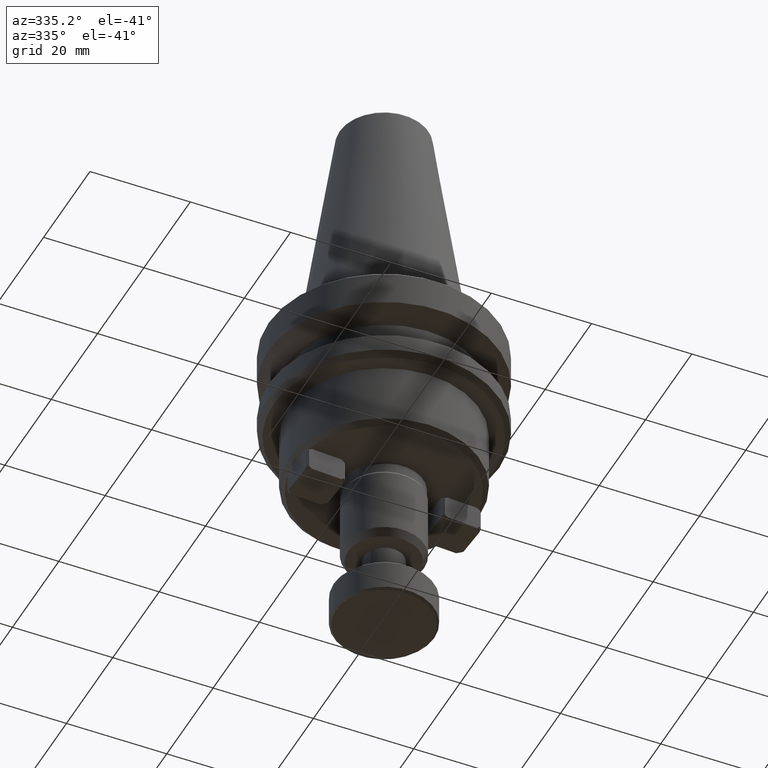
[diagram: clean part render]
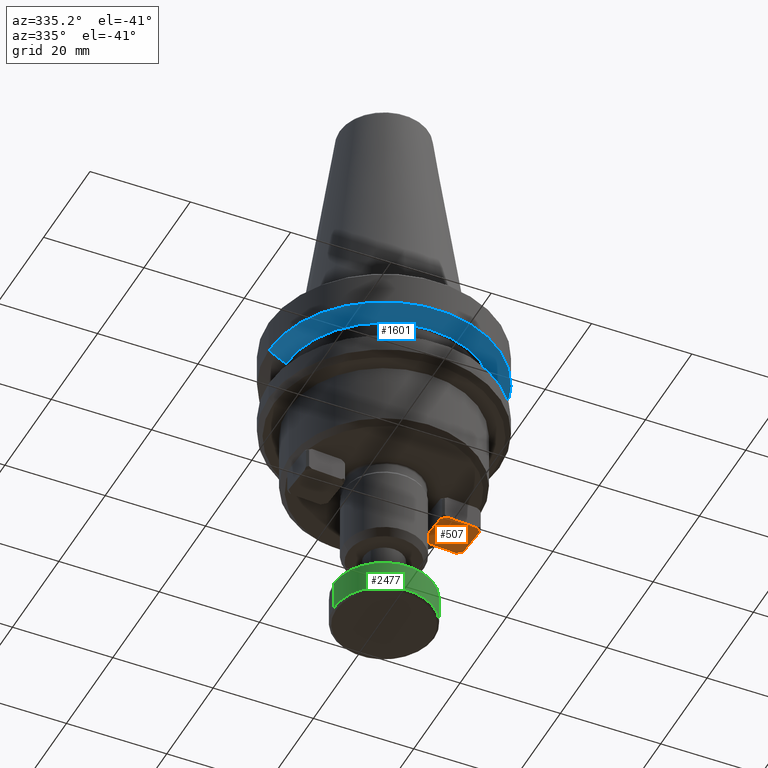
[diagram: same view with three faces highlighted in distinct colors, each labeled with its STEP entity id]
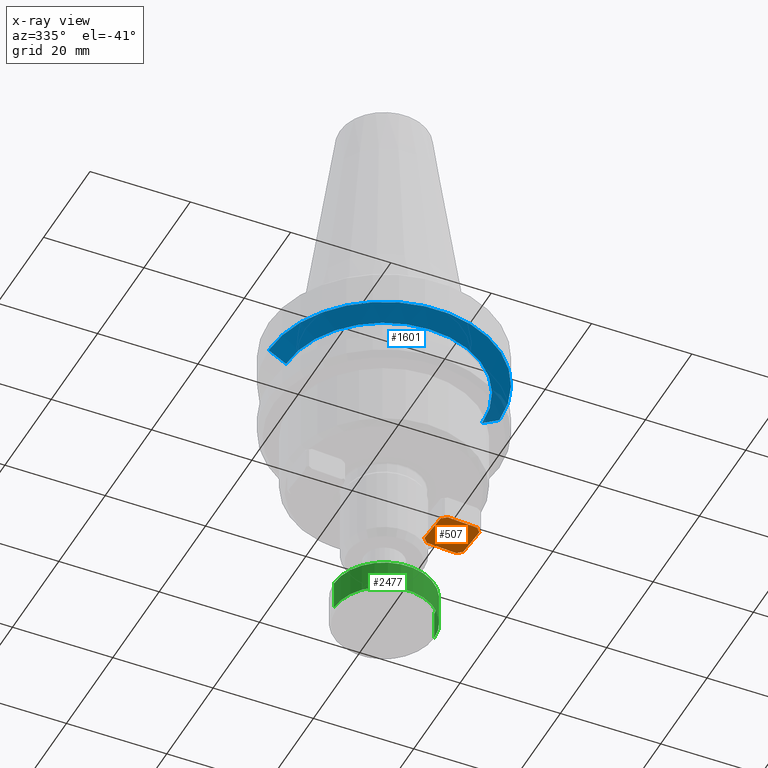
[diagram: x-ray of the same camera — body ghosted, the three highlighted faces saturated]
A machine part, auxiliary view with three faces highlighted in distinct colors.
The next image is the same camera in x-ray (body ghosted, the three faces saturated) — at least one of them is partly hidden behind the body in this view.
Their STEP definitions:

[orange] entity #507 — the highlighted planar face has unit normal (0, -0, -1).
#13 = CARTESIAN_POINT ( 'NONE',  ( 52.39083577158259400, 57.95562535712460300, 36.32808018129033200 ) ) ;
#171 = EDGE_CURVE ( 'NONE', #2365, #510, #3293, .T. ) ;
#334 = EDGE_CURVE ( 'NONE', #3268, #2072, #1444, .T. ) ;
#444 = DIRECTION ( 'NONE',  ( -0.6617231083353180000, -0.7497483096980246400, 0.0000000000000000000 ) ) ;
#478 = CARTESIAN_POINT ( 'NONE',  ( 59.84934925718415900, 51.37278860589403700, 36.32808018129033200 ) ) ;
#507 = ADVANCED_FACE ( 'NONE', ( #3252 ), #2300, .T. ) ;
#510 = VERTEX_POINT ( 'NONE', #3431 ) ;
#613 = DIRECTION ( 'NONE',  ( -0.7497483096980248600, 0.6617231083353176700, 0.0000000000000000000 ) ) ;
#663 = DIRECTION ( 'NONE',  ( 0.06224321679888165900, -0.9980610111423686700, -0.0000000000000000000 ) ) ;
#719 = CARTESIAN_POINT ( 'NONE',  ( 52.88878150597364700, 49.97113726798565400, 36.32808018129033200 ) ) ;
#771 = ORIENTED_EDGE ( 'NONE', *, *, #171, .F. ) ;
#780 = DIRECTION ( 'NONE',  ( -0.9980610111423686700, -0.06224321679888165900, 0.0000000000000000000 ) ) ;
#844 = DIRECTION ( 'NONE',  ( -0.7497483096980246400, 0.6617231083353180000, 2.540443715647714400E-015 ) ) ;
#868 = VERTEX_POINT ( 'NONE', #2280 ) ;
#883 = VECTOR ( 'NONE', #780, 1000.000000000000200 ) ;
#919 = VECTOR ( 'NONE', #2728, 1000.000000000000000 ) ;
#923 = LINE ( 'NONE', #719, #2175 ) ;
#924 = DIRECTION ( 'NONE',  ( 0.0000000000000000000, -0.0000000000000000000, -1.000000000000000000 ) ) ;
#1038 = CARTESIAN_POINT ( 'NONE',  ( 59.41151088999865900, 58.39346372431010200, 36.32808018129033200 ) ) ;
#1160 = ORIENTED_EDGE ( 'NONE', *, *, #3310, .T. ) ;
#1304 = CARTESIAN_POINT ( 'NONE',  ( 52.88878150597364700, 49.97113726798565400, 36.32808018129033200 ) ) ;
#1324 = CARTESIAN_POINT ( 'NONE',  ( 51.90007124853120500, 50.31025430523705200, 36.32808018129033200 ) ) ;
#1331 = EDGE_CURVE ( 'NONE', #1624, #868, #3393, .T. ) ;
#1335 = EDGE_CURVE ( 'NONE', #3205, #510, #1338, .T. ) ;
#1338 = LINE ( 'NONE', #2318, #2595 ) ;
#1349 = DIRECTION ( 'NONE',  ( 0.06224321679888166600, -0.9980610111423687800, 0.0000000000000000000 ) ) ;
#1444 = LINE ( 'NONE', #1324, #2709 ) ;
#1467 = CARTESIAN_POINT ( 'NONE',  ( 59.88455933767016100, 50.80820003962810500, 36.32808018129033200 ) ) ;
#1495 = CARTESIAN_POINT ( 'NONE',  ( 59.84934925718415900, 51.37278860589403700, 36.32808018129033200 ) ) ;
#1544 = ORIENTED_EDGE ( 'NONE', *, *, #1335, .T. ) ;
#1574 = CARTESIAN_POINT ( 'NONE',  ( 51.48713016806526400, 56.93170501919616600, 36.32808018129033200 ) ) ;
#1624 = VERTEX_POINT ( 'NONE', #1495 ) ;
#1696 = EDGE_LOOP ( 'NONE', ( #1544, #771, #2616, #2068, #2963, #3379, #3326, #1160 ) ) ;
#1924 = CARTESIAN_POINT ( 'NONE',  ( 51.86486116811549600, 50.87484287144094700, 36.32808018129033200 ) ) ;
#1946 = VECTOR ( 'NONE', #444, 1000.000000000000000 ) ;
#2034 = VECTOR ( 'NONE', #663, 1000.000000000000200 ) ;
#2068 = ORIENTED_EDGE ( 'NONE', *, *, #1331, .T. ) ;
#2072 = VERTEX_POINT ( 'NONE', #3014 ) ;
#2116 = CARTESIAN_POINT ( 'NONE',  ( 59.51023221993276000, 50.38407834845160200, 36.32808018129033200 ) ) ;
#2134 = DIRECTION ( 'NONE',  ( -0.06224321679888165900, 0.9980610111423686700, 0.0000000000000000000 ) ) ;
#2175 = VECTOR ( 'NONE', #613, 1000.000000000000100 ) ;
#2244 = CARTESIAN_POINT ( 'NONE',  ( 59.47161825706363200, 57.42965075371128600, 36.32808018129033200 ) ) ;
#2280 = CARTESIAN_POINT ( 'NONE',  ( 58.94564365366682100, 50.34886826796559900, 36.32808018129033200 ) ) ;
#2300 = PLANE ( 'NONE',  #2972 ) ;
#2318 = CARTESIAN_POINT ( 'NONE',  ( 51.82624720531666200, 57.92041527663860700, 36.32808018129033200 ) ) ;
#2336 = LINE ( 'NONE', #1574, #919 ) ;
#2365 = VERTEX_POINT ( 'NONE', #2244 ) ;
#2476 = LINE ( 'NONE', #2116, #883 ) ;
#2575 = VECTOR ( 'NONE', #844, 1000.000000000000000 ) ;
#2595 = VECTOR ( 'NONE', #2698, 1000.000000000000200 ) ;
#2616 = ORIENTED_EDGE ( 'NONE', *, *, #2734, .T. ) ;
#2694 = LINE ( 'NONE', #1467, #2034 ) ;
#2698 = DIRECTION ( 'NONE',  ( 0.9980610111423686700, 0.06224321679888165900, -0.0000000000000000000 ) ) ;
#2709 = VECTOR ( 'NONE', #2134, 1000.000000000000200 ) ;
#2728 = DIRECTION ( 'NONE',  ( 0.6617231083353174400, 0.7497483096980250800, 0.0000000000000000000 ) ) ;
#2734 = EDGE_CURVE ( 'NONE', #2365, #1624, #2694, .T. ) ;
#2948 = EDGE_CURVE ( 'NONE', #3344, #3268, #923, .T. ) ;
#2963 = ORIENTED_EDGE ( 'NONE', *, *, #3128, .T. ) ;
#2972 = AXIS2_PLACEMENT_3D ( 'NONE', #1038, #924, #1349 ) ;
#3014 = CARTESIAN_POINT ( 'NONE',  ( 51.48713016806526400, 56.93170501919616600, 36.32808018129033200 ) ) ;
#3128 = EDGE_CURVE ( 'NONE', #868, #3344, #2476, .T. ) ;
#3205 = VERTEX_POINT ( 'NONE', #13 ) ;
#3252 = FACE_OUTER_BOUND ( 'NONE', #1696, .T. ) ;
#3268 = VERTEX_POINT ( 'NONE', #1924 ) ;
#3293 = LINE ( 'NONE', #3433, #2575 ) ;
#3310 = EDGE_CURVE ( 'NONE', #2072, #3205, #2336, .T. ) ;
#3326 = ORIENTED_EDGE ( 'NONE', *, *, #334, .T. ) ;
#3344 = VERTEX_POINT ( 'NONE', #1304 ) ;
#3379 = ORIENTED_EDGE ( 'NONE', *, *, #2948, .T. ) ;
#3393 = LINE ( 'NONE', #478, #1946 ) ;
#3431 = CARTESIAN_POINT ( 'NONE',  ( 58.44769791927577500, 58.33335635710454900, 36.32808018129033200 ) ) ;
#3433 = CARTESIAN_POINT ( 'NONE',  ( 59.47161825720421300, 57.42965075358721800, 36.32808018129033200 ) ) ;

[blue] entity #1601 — the highlighted conical surface has half-angle 60 deg.
#1 = DIRECTION ( 'NONE',  ( -0.0000000000000000000, -0.0000000000000000000, 1.000000000000000000 ) ) ;
#11 = EDGE_LOOP ( 'NONE', ( #1305, #2577, #3275, #1850 ) ) ;
#116 = CARTESIAN_POINT ( 'NONE',  ( 22.16339506383855400, 53.21725052380196500, 64.47808018129397600 ) ) ;
#117 = CARTESIAN_POINT ( 'NONE',  ( 41.69949667897863300, 53.21725052380196500, 64.47808018129397600 ) ) ;
#186 = DIRECTION ( 'NONE',  ( 1.000000000000000000, 0.0000000000000000000, 0.0000000000000000000 ) ) ;
#252 = CARTESIAN_POINT ( 'NONE',  ( 61.23559829411870900, 53.21725052380196500, 64.47808018129397600 ) ) ;
#353 = DIRECTION ( 'NONE',  ( 0.8660254037844390400, 0.0000000000000000000, 0.4999999999999993300 ) ) ;
#472 = AXIS2_PLACEMENT_3D ( 'NONE', #3177, #1, #2827 ) ;
#482 = CONICAL_SURFACE ( 'NONE', #472, 19.53610161514007600, 1.047197551196598500 ) ;
#520 = VECTOR ( 'NONE', #353, 1000.000000000000000 ) ;
#631 = CARTESIAN_POINT ( 'NONE',  ( 41.69949667897863300, 53.21725052380196500, 66.47796284623829900 ) ) ;
#671 = CARTESIAN_POINT ( 'NONE',  ( 18.69949667897872200, 53.21725052380196500, 66.47796284623829900 ) ) ;
#706 = AXIS2_PLACEMENT_3D ( 'NONE', #631, #2219, #1712 ) ;
#936 = EDGE_CURVE ( 'NONE', #1044, #1510, #1193, .T. ) ;
#1044 = VERTEX_POINT ( 'NONE', #116 ) ;
#1193 = LINE ( 'NONE', #2124, #3248 ) ;
#1245 = LINE ( 'NONE', #252, #520 ) ;
#1305 = ORIENTED_EDGE ( 'NONE', *, *, #936, .F. ) ;
#1510 = VERTEX_POINT ( 'NONE', #671 ) ;
#1559 = CIRCLE ( 'NONE', #3107, 19.53610161514007600 ) ;
#1601 = ADVANCED_FACE ( 'NONE', ( #3349 ), #482, .T. ) ;
#1712 = DIRECTION ( 'NONE',  ( 1.000000000000000000, 0.0000000000000000000, 0.0000000000000000000 ) ) ;
#1781 = EDGE_CURVE ( 'NONE', #2917, #2909, #1245, .T. ) ;
#1850 = ORIENTED_EDGE ( 'NONE', *, *, #2061, .F. ) ;
#1994 = EDGE_CURVE ( 'NONE', #1044, #2917, #1559, .T. ) ;
#2061 = EDGE_CURVE ( 'NONE', #1510, #2909, #2823, .T. ) ;
#2124 = CARTESIAN_POINT ( 'NONE',  ( 22.16339506383855400, 53.21725052380196500, 64.47808018129397600 ) ) ;
#2219 = DIRECTION ( 'NONE',  ( -0.0000000000000000000, -0.0000000000000000000, 1.000000000000000000 ) ) ;
#2264 = CARTESIAN_POINT ( 'NONE',  ( 61.23559829411870900, 53.21725052380196500, 64.47808018129397600 ) ) ;
#2577 = ORIENTED_EDGE ( 'NONE', *, *, #1994, .T. ) ;
#2680 = CARTESIAN_POINT ( 'NONE',  ( 64.69949667897853400, 53.21725052380196500, 66.47796284623829900 ) ) ;
#2823 = CIRCLE ( 'NONE', #706, 22.99999999999990400 ) ;
#2827 = DIRECTION ( 'NONE',  ( 1.000000000000000000, 0.0000000000000000000, 0.0000000000000000000 ) ) ;
#2909 = VERTEX_POINT ( 'NONE', #2680 ) ;
#2917 = VERTEX_POINT ( 'NONE', #2264 ) ;
#2941 = DIRECTION ( 'NONE',  ( -0.8660254037844390400, 1.060575238724907400E-016, 0.4999999999999993300 ) ) ;
#3107 = AXIS2_PLACEMENT_3D ( 'NONE', #117, #3451, #186 ) ;
#3177 = CARTESIAN_POINT ( 'NONE',  ( 41.69949667897863300, 53.21725052380196500, 64.47808018129397600 ) ) ;
#3248 = VECTOR ( 'NONE', #2941, 1000.000000000000000 ) ;
#3275 = ORIENTED_EDGE ( 'NONE', *, *, #1781, .T. ) ;
#3349 = FACE_OUTER_BOUND ( 'NONE', #11, .T. ) ;
#3451 = DIRECTION ( 'NONE',  ( -0.0000000000000000000, -0.0000000000000000000, 1.000000000000000000 ) ) ;

[green] entity #2477 — the highlighted cylindrical surface (partial cylindrical patch) has radius 10 mm, axis along (0, -0, -1).
#86 = DIRECTION ( 'NONE',  ( 4.513101726118517000E-016, -0.0000000000000000000, -1.000000000000000000 ) ) ;
#147 = CARTESIAN_POINT ( 'NONE',  ( 51.69949667897854800, 53.21725052380196500, 9.078080181290282300 ) ) ;
#162 = EDGE_CURVE ( 'NONE', #2497, #1204, #601, .T. ) ;
#204 = EDGE_CURVE ( 'NONE', #1204, #3407, #2665, .T. ) ;
#271 = VECTOR ( 'NONE', #586, 1000.000000000000000 ) ;
#494 = CARTESIAN_POINT ( 'NONE',  ( 41.69949667897864700, 53.21725052380196500, 15.27808018129033300 ) ) ;
#545 = CARTESIAN_POINT ( 'NONE',  ( 31.69949667897875000, 53.21725052380196500, 9.078080181290271600 ) ) ;
#565 = EDGE_LOOP ( 'NONE', ( #1682, #2228, #3007, #3264 ) ) ;
#586 = DIRECTION ( 'NONE',  ( 4.513101726118517000E-016, -0.0000000000000000000, -1.000000000000000000 ) ) ;
#601 = LINE ( 'NONE', #147, #3373 ) ;
#676 = FACE_OUTER_BOUND ( 'NONE', #565, .T. ) ;
#784 = CARTESIAN_POINT ( 'NONE',  ( 41.69949667897864700, 53.21725052380196500, 9.078080181290276900 ) ) ;
#978 = AXIS2_PLACEMENT_3D ( 'NONE', #784, #1180, #2381 ) ;
#1004 = LINE ( 'NONE', #545, #271 ) ;
#1180 = DIRECTION ( 'NONE',  ( 4.513101726118517000E-016, -0.0000000000000000000, -1.000000000000000000 ) ) ;
#1204 = VERTEX_POINT ( 'NONE', #2924 ) ;
#1585 = CARTESIAN_POINT ( 'NONE',  ( 31.69949667897864400, 53.21725052380196500, 9.478080181290222200 ) ) ;
#1668 = CIRCLE ( 'NONE', #2826, 9.999999999999793900 ) ;
#1670 = CARTESIAN_POINT ( 'NONE',  ( 31.69949667897885300, 53.21725052380196500, 15.27808018129032800 ) ) ;
#1682 = ORIENTED_EDGE ( 'NONE', *, *, #162, .F. ) ;
#1871 = CARTESIAN_POINT ( 'NONE',  ( 41.69949667897864700, 53.21725052380196500, 9.478080181290227600 ) ) ;
#2228 = ORIENTED_EDGE ( 'NONE', *, *, #3102, .T. ) ;
#2377 = DIRECTION ( 'NONE',  ( -1.000000000000000000, 0.0000000000000000000, -5.204170427930528800E-016 ) ) ;
#2381 = DIRECTION ( 'NONE',  ( -1.000000000000000000, 0.0000000000000000000, -5.204170427930474500E-016 ) ) ;
#2477 = ADVANCED_FACE ( 'NONE', ( #676 ), #2745, .T. ) ;
#2497 = VERTEX_POINT ( 'NONE', #3449 ) ;
#2498 = DIRECTION ( 'NONE',  ( -1.000000000000000000, 0.0000000000000000000, -5.204170427930420300E-016 ) ) ;
#2500 = AXIS2_PLACEMENT_3D ( 'NONE', #1871, #3499, #2498 ) ;
#2658 = DIRECTION ( 'NONE',  ( 4.513101726118517000E-016, -0.0000000000000000000, -1.000000000000000000 ) ) ;
#2665 = CIRCLE ( 'NONE', #2500, 10.00000000000000200 ) ;
#2745 = CYLINDRICAL_SURFACE ( 'NONE', #978, 9.999999999999897000 ) ;
#2826 = AXIS2_PLACEMENT_3D ( 'NONE', #494, #2658, #2377 ) ;
#2860 = EDGE_CURVE ( 'NONE', #3098, #3407, #1004, .T. ) ;
#2924 = CARTESIAN_POINT ( 'NONE',  ( 51.69949667897864700, 53.21725052380196500, 9.478080181290232900 ) ) ;
#3007 = ORIENTED_EDGE ( 'NONE', *, *, #2860, .T. ) ;
#3098 = VERTEX_POINT ( 'NONE', #1670 ) ;
#3102 = EDGE_CURVE ( 'NONE', #2497, #3098, #1668, .T. ) ;
#3264 = ORIENTED_EDGE ( 'NONE', *, *, #204, .F. ) ;
#3373 = VECTOR ( 'NONE', #86, 1000.000000000000000 ) ;
#3407 = VERTEX_POINT ( 'NONE', #1585 ) ;
#3449 = CARTESIAN_POINT ( 'NONE',  ( 51.69949667897844100, 53.21725052380196500, 15.27808018129033800 ) ) ;
#3499 = DIRECTION ( 'NONE',  ( 4.513101726118517000E-016, -0.0000000000000000000, -1.000000000000000000 ) ) ;